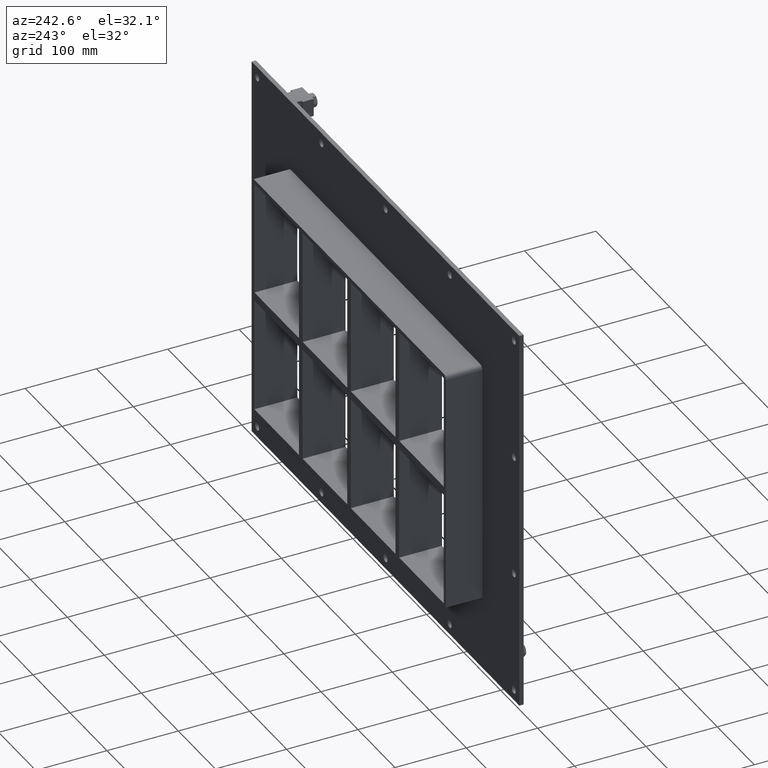
[diagram: clean part render]
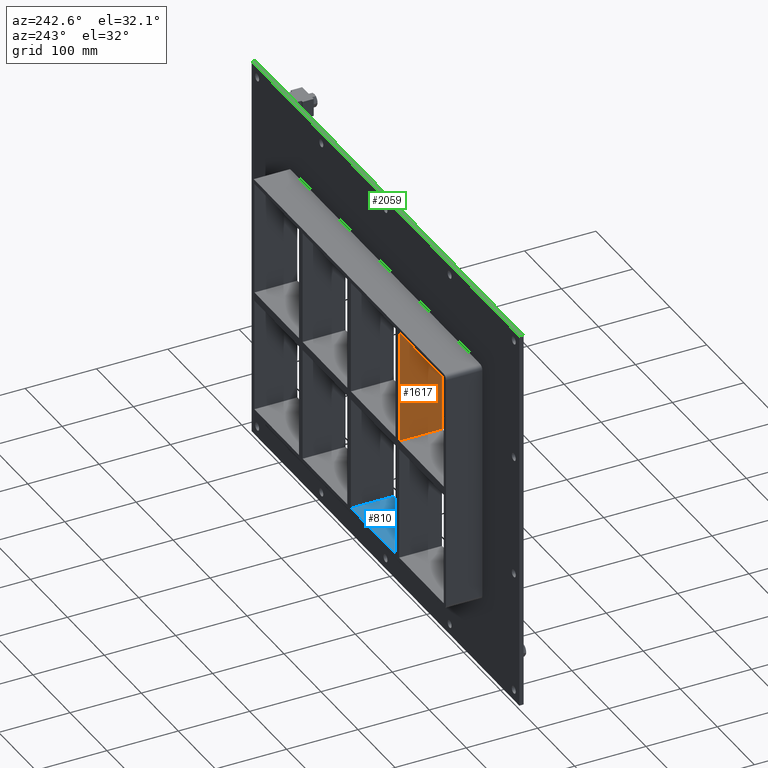
[diagram: same view with three faces highlighted in distinct colors, each labeled with its STEP entity id]
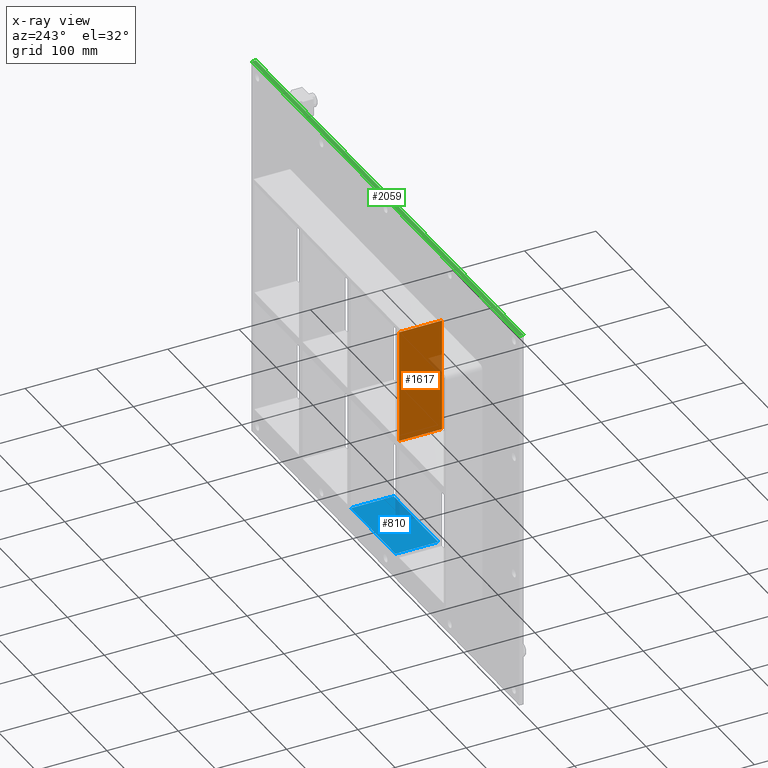
[diagram: x-ray of the same camera — body ghosted, the three highlighted faces saturated]
A machine part, auxiliary view with three faces highlighted in distinct colors.
The next image is the same camera in x-ray (body ghosted, the three faces saturated) — at least one of them is partly hidden behind the body in this view.
Their STEP definitions:

[orange] entity #1617 — the highlighted planar face has unit normal (-1, 0, 0).
#1062=CARTESIAN_POINT('',(-135.49999999999906,-3.0,165.5));
#1063=VERTEX_POINT('',#1062);
#1070=CARTESIAN_POINT('',(-135.49999999999906,-3.0,5.999999999999091));
#1071=VERTEX_POINT('',#1070);
#1072=CARTESIAN_POINT('',(-135.49999999999903,-3.0,5.999999999999091));
#1073=DIRECTION('',(0.0,0.0,1.0));
#1074=VECTOR('',#1073,159.50000000000091);
#1075=LINE('',#1072,#1074);
#1076=EDGE_CURVE('',#1071,#1063,#1075,.T.);
#1320=CARTESIAN_POINT('',(-135.49999999999906,57.0,5.999999999999091));
#1321=VERTEX_POINT('',#1320);
#1328=CARTESIAN_POINT('',(-135.49999999999906,57.0,165.5));
#1329=VERTEX_POINT('',#1328);
#1330=CARTESIAN_POINT('',(-135.49999999999903,57.0,5.999999999999091));
#1331=DIRECTION('',(0.0,0.0,1.0));
#1332=VECTOR('',#1331,159.50000000000091);
#1333=LINE('',#1330,#1332);
#1334=EDGE_CURVE('',#1321,#1329,#1333,.T.);
#1543=CARTESIAN_POINT('',(-135.49999999999903,57.0,5.999999999999091));
#1544=DIRECTION('',(0.0,-1.0,0.0));
#1545=VECTOR('',#1544,60.0);
#1546=LINE('',#1543,#1545);
#1547=EDGE_CURVE('',#1321,#1071,#1546,.T.);
#1601=CARTESIAN_POINT('',(-135.49999999999903,-3.0,-165.5));
#1602=DIRECTION('',(-1.0,0.0,0.0));
#1603=DIRECTION('',(0.0,0.0,1.0));
#1604=AXIS2_PLACEMENT_3D('',#1601,#1602,#1603);
#1605=PLANE('',#1604);
#1606=ORIENTED_EDGE('',*,*,#1547,.T.);
#1607=ORIENTED_EDGE('',*,*,#1076,.T.);
#1608=CARTESIAN_POINT('',(-135.49999999999903,57.000000000000007,165.5));
#1609=DIRECTION('',(0.0,-1.0,0.0));
#1610=VECTOR('',#1609,60.000000000000007);
#1611=LINE('',#1608,#1610);
#1612=EDGE_CURVE('',#1329,#1063,#1611,.T.);
#1613=ORIENTED_EDGE('',*,*,#1612,.F.);
#1614=ORIENTED_EDGE('',*,*,#1334,.F.);
#1615=EDGE_LOOP('',(#1606,#1607,#1613,#1614));
#1616=FACE_OUTER_BOUND('',#1615,.T.);
#1617=ADVANCED_FACE('',(#1616),#1605,.T.);

[blue] entity #810 — the highlighted planar face has unit normal (0, 0, -1).
#675=CARTESIAN_POINT('',(-4.999999999999041,57.0,-165.5));
#676=VERTEX_POINT('',#675);
#683=CARTESIAN_POINT('',(-4.999999999999041,-3.0,-165.5));
#684=VERTEX_POINT('',#683);
#685=CARTESIAN_POINT('',(-4.999999999999041,-3.0,-165.5));
#686=DIRECTION('',(0.0,1.0,0.0));
#687=VECTOR('',#686,60.000000000000007);
#688=LINE('',#685,#687);
#689=EDGE_CURVE('',#684,#676,#688,.T.);
#780=CARTESIAN_POINT('',(256.0,0.0,-165.5));
#781=DIRECTION('',(0.0,0.0,-1.0));
#782=DIRECTION('',(-1.0,0.0,0.0));
#783=AXIS2_PLACEMENT_3D('',#780,#781,#782);
#784=PLANE('',#783);
#785=ORIENTED_EDGE('',*,*,#689,.T.);
#786=CARTESIAN_POINT('',(-125.49999999999272,57.0,-165.49999999998175));
#787=VERTEX_POINT('',#786);
#788=CARTESIAN_POINT('',(-125.49999999999272,57.0,-165.5));
#789=DIRECTION('',(1.0,0.0,0.0));
#790=VECTOR('',#789,120.49999999999369);
#791=LINE('',#788,#790);
#792=EDGE_CURVE('',#787,#676,#791,.T.);
#793=ORIENTED_EDGE('',*,*,#792,.F.);
#794=CARTESIAN_POINT('',(-125.49999999999272,-3.0,-165.49999999998175));
#795=VERTEX_POINT('',#794);
#796=CARTESIAN_POINT('',(-125.49999999999272,57.000000000000007,-165.5));
#797=DIRECTION('',(0.0,-1.0,0.0));
#798=VECTOR('',#797,60.000000000000007);
#799=LINE('',#796,#798);
#800=EDGE_CURVE('',#787,#795,#799,.T.);
#801=ORIENTED_EDGE('',*,*,#800,.T.);
#802=CARTESIAN_POINT('',(-4.999999999999034,-3.0,-165.5));
#803=DIRECTION('',(-1.0,0.0,0.0));
#804=VECTOR('',#803,120.49999999999369);
#805=LINE('',#802,#804);
#806=EDGE_CURVE('',#684,#795,#805,.T.);
#807=ORIENTED_EDGE('',*,*,#806,.F.);
#808=EDGE_LOOP('',(#785,#793,#801,#807));
#809=FACE_OUTER_BOUND('',#808,.T.);
#810=ADVANCED_FACE('',(#809),#784,.F.);

[green] entity #2059 — the highlighted planar face has unit normal (0, 0, 1).
#1693=CARTESIAN_POINT('',(-362.0,6.000000000000001,271.5));
#1694=VERTEX_POINT('',#1693);
#1695=CARTESIAN_POINT('',(362.0,6.000000000000001,271.5));
#1696=VERTEX_POINT('',#1695);
#1697=CARTESIAN_POINT('',(-362.0,6.000000000000001,271.5));
#1698=DIRECTION('',(1.0,0.0,0.0));
#1699=VECTOR('',#1698,724.0);
#1700=LINE('',#1697,#1699);
#1701=EDGE_CURVE('',#1694,#1696,#1700,.T.);
#1845=CARTESIAN_POINT('',(-362.0,0.0,271.5));
#1846=VERTEX_POINT('',#1845);
#1847=CARTESIAN_POINT('',(361.99999999999994,0.0,271.5));
#1848=VERTEX_POINT('',#1847);
#1849=CARTESIAN_POINT('',(-362.0,0.0,271.5));
#1850=DIRECTION('',(1.0,0.0,0.0));
#1851=VECTOR('',#1850,724.0);
#1852=LINE('',#1849,#1851);
#1853=EDGE_CURVE('',#1846,#1848,#1852,.T.);
#1998=CARTESIAN_POINT('',(-362.0,0.0,271.5));
#1999=DIRECTION('',(0.0,1.0,0.0));
#2000=VECTOR('',#1999,6.000000000000001);
#2001=LINE('',#1998,#2000);
#2002=EDGE_CURVE('',#1846,#1694,#2001,.T.);
#2039=CARTESIAN_POINT('',(361.99999999999994,0.0,271.5));
#2040=DIRECTION('',(0.0,1.0,0.0));
#2041=VECTOR('',#2040,6.000000000000001);
#2042=LINE('',#2039,#2041);
#2043=EDGE_CURVE('',#1848,#1696,#2042,.T.);
#2048=CARTESIAN_POINT('',(-362.0,0.0,271.5));
#2049=DIRECTION('',(0.0,0.0,1.0));
#2050=DIRECTION('',(1.0,0.0,0.0));
#2051=AXIS2_PLACEMENT_3D('',#2048,#2049,#2050);
#2052=PLANE('',#2051);
#2053=ORIENTED_EDGE('',*,*,#1853,.T.);
#2054=ORIENTED_EDGE('',*,*,#2043,.T.);
#2055=ORIENTED_EDGE('',*,*,#1701,.F.);
#2056=ORIENTED_EDGE('',*,*,#2002,.F.);
#2057=EDGE_LOOP('',(#2053,#2054,#2055,#2056));
#2058=FACE_OUTER_BOUND('',#2057,.T.);
#2059=ADVANCED_FACE('',(#2058),#2052,.T.);